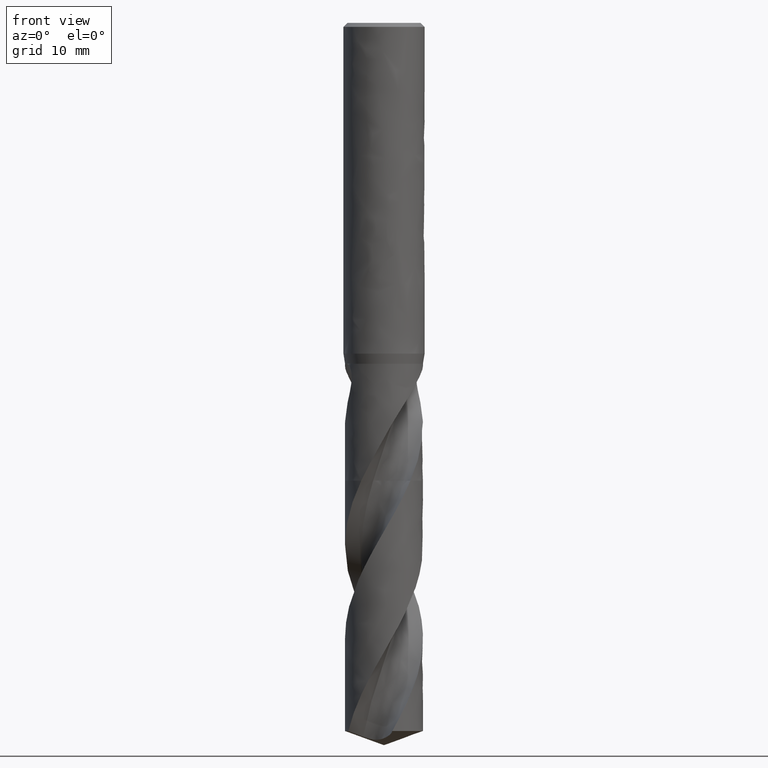
[diagram: clean part render]
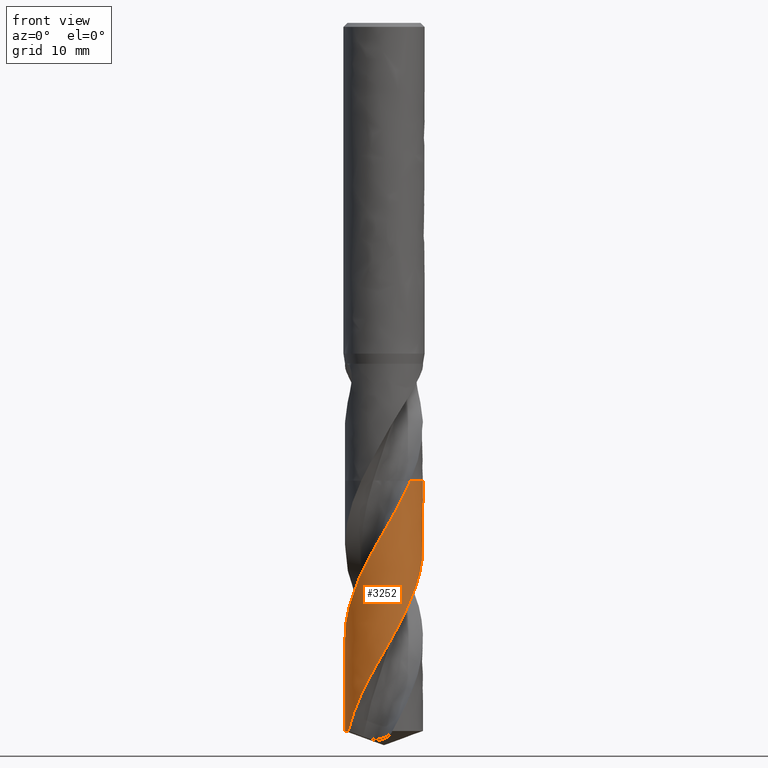
[diagram: same view with one face highlighted and labeled with its STEP entity id]
A machine part, front view. The second image highlights one B-rep face of the part: STEP entity #3252.
In plain terms, the highlighted face is a freeform B-spline surface patch.
Its self-contained STEP definition (entity closure, byte-faithful):
#1973 = VERTEX_POINT('', #1974);
#1974 = CARTESIAN_POINT('', (3.26266816956388, -3.52065283936299, -56.4));
#2041 = EDGE_CURVE('', #2042, #1973, #2044, .T.);
#2042 = VERTEX_POINT('', #2043);
#2043 = CARTESIAN_POINT('', (2.80088440226429, 3.89808242154431, -56.4));
#2044 = CIRCLE('', #2045, 4.8);
#2045 = AXIS2_PLACEMENT_3D('', #2046, #2047, #2048);
#2046 = CARTESIAN_POINT('', (2.11466129355322E-31, 3.45350397359554E-15, -56.4));
#2047 = DIRECTION('', (3.74939945665464E-33, 6.12323399573677E-17, -1.));
#2048 = DIRECTION('', (-1., 6.12323399573677E-17, 0.));
#3013 = EDGE_CURVE('', #2042, #3014, #3016, .T.);
#3014 = VERTEX_POINT('', #3015);
#3015 = CARTESIAN_POINT('', (-4.39018999158839, -1.94067819015855, -87.2529428755222));
#3016 = B_SPLINE_CURVE_WITH_KNOTS('', 3, (#3017, #3018, #3019, #3020, #3021, #3022, #3023, #3024, #3025, #3026, #3027, #3028, #3029, #3030, #3031, #3032, #3033, #3034, #3035, #3036, #3037, #3038, #3039, #3040, #3041, #3042, #3043, #3044, #3045, #3046, #3047, #3048, #3049, #3050, #3051, #3052, #3053, #3054, #3055, #3056, #3057, #3058, #3059, #3060, #3061, #3062, #3063, #3064, #3065, #3066, #3067, #3068, #3069, #3070, #3071, #3072, #3073, #3074, #3075, #3076, #3077, #3078, #3079, #3080, #3081, #3082, #3083, #3084, #3085, #3086, #3087, #3088, #3089, #3090, #3091, #3092, #3093, #3094, #3095, #3096, #3097, #3098, #3099, #3100, #3101, #3102, #3103, #3104, #3105, #3106, #3107, #3108, #3109, #3110, #3111, #3112, #3113, #3114, #3115, #3116, #3117, #3118, #3119, #3120, #3121, #3122, #3123, #3124, #3125, #3126, #3127, #3128, #3129, #3130, #3131, #3132, #3133, #3134, #3135, #3136, #3137, #3138, #3139, #3140), .UNSPECIFIED., .F., .U., (4, 3, 3, 3, 3, 3, 3, 3, 3, 3, 3, 3, 3, 3, 3, 3, 3, 3, 3, 3, 3, 3, 3, 3, 3, 3, 3, 3, 3, 3, 3, 3, 3, 3, 3, 3, 3, 3, 3, 3, 3, 4), (13.7042233330329, 14.4457744735226, 15.4434128109755, 16.4407181553541, 17.4376977974565, 18.4343501793914, 19.4306743820636, 20.4266669246063, 21.4223226939535, 22.4176345229838, 22.7129916703019, 22.8443146461555, 22.9757247313247, 23.9757146775921, 24.9753149431819, 25.9745422049943, 26.973410229939, 27.9719302272839, 28.9701111209858, 29.9679597573009, 30.9654810583245, 31.9626781291069, 32.9595523234669, 33.9561032715885, 34.9523288706809, 35.9482252383163, 36.9437866293155, 37.939005306013, 38.0265641434238, 38.0849523872374, 39.084952972639, 40.0845670583772, 41.0838113176879, 42.0826995367504, 43.0812429680984, 44.0794506032565, 45.0773293769486, 46.0748843280766, 47.0721186942076, 48.069034011631, 49.0656300783286, 49.2357106982337), .UNSPECIFIED.);
#3017 = CARTESIAN_POINT('', (2.80088440226429, 3.89808242154431, -56.4));
#3018 = CARTESIAN_POINT('', (2.90085592286399, 3.82625000692661, -56.6143492185597));
#3019 = CARTESIAN_POINT('', (2.99808197490603, 3.7505535459088, -56.8287904814698));
#3020 = CARTESIAN_POINT('', (3.09221547968282, 3.67126727809485, -57.0431554954822));
#3021 = CARTESIAN_POINT('', (3.21885703961907, 3.56460029845471, -57.3315493020727));
#3022 = CARTESIAN_POINT('', (3.34000695087356, 3.45134184532569, -57.620043623779));
#3023 = CARTESIAN_POINT('', (3.45493287095499, 3.33218229651301, -57.9084529713193));
#3024 = CARTESIAN_POINT('', (3.56982043090729, 3.21306252093579, -58.1967660531973));
#3025 = CARTESIAN_POINT('', (3.67856353342554, 3.08796807092813, -58.485185783193));
#3026 = CARTESIAN_POINT('', (3.78051526048728, 2.9576518329957, -58.773520014646));
#3027 = CARTESIAN_POINT('', (3.88243369191921, 2.82737815404037, -59.0617600812417));
#3028 = CARTESIAN_POINT('', (3.9776329620267, 2.69179929826908, -59.350104686837));
#3029 = CARTESIAN_POINT('', (4.06554578500115, 2.55173224889671, -59.638364103547));
#3030 = CARTESIAN_POINT('', (4.15342975045035, 2.41171117675809, -59.9265288986408));
#3031 = CARTESIAN_POINT('', (4.23409016165158, 2.26711237929592, -60.2147985960631));
#3032 = CARTESIAN_POINT('', (4.30704842096441, 2.11880482807361, -60.5029832656864));
#3033 = CARTESIAN_POINT('', (4.37998265646695, 1.97054611179483, -60.7910730414087));
#3034 = CARTESIAN_POINT('', (4.44526807066864, 1.81848301698919, -61.0792673790929));
#3035 = CARTESIAN_POINT('', (4.50251870694292, 1.66352796598949, -61.3673768467481));
#3036 = CARTESIAN_POINT('', (4.55975028541113, 1.5086244970071, -61.6553904074455));
#3037 = CARTESIAN_POINT('', (4.6089902370289, 1.35072875661112, -61.9435083950022));
#3038 = CARTESIAN_POINT('', (4.64994920750852, 1.19078644919695, -62.2315416751255));
#3039 = CARTESIAN_POINT('', (4.69089432860395, 1.0308982227921, -62.5194775630656));
#3040 = CARTESIAN_POINT('', (4.72359108308026, 0.868859419327918, -62.807517695009));
#3041 = CARTESIAN_POINT('', (4.74784938426638, 0.70563887670822, -63.095473269254));
#3042 = CARTESIAN_POINT('', (4.77209930564086, 0.542474717154722, -63.3833293718396));
#3043 = CARTESIAN_POINT('', (4.787932584024, 0.378022284418703, -63.6712895549871));
#3044 = CARTESIAN_POINT('', (4.79526003938155, 0.213263111466172, -63.959165328145));
#3045 = CARTESIAN_POINT('', (4.79743444970039, 0.164371098030372, -64.0445919900835));
#3046 = CARTESIAN_POINT('', (4.79886102057986, 0.115445961183362, -64.1300220074568));
#3047 = CARTESIAN_POINT('', (4.79953914250099, 0.0665133039388361, -64.2154503798727));
#3048 = CARTESIAN_POINT('', (4.79984065201069, 0.0447566536457195, -64.2534339133334));
#3049 = CARTESIAN_POINT('', (4.79999421918566, 0.0229981154505236, -64.2914178278767));
#3050 = CARTESIAN_POINT('', (4.79999983984467, 0.00123995609741623, -64.3294016931893));
#3051 = CARTESIAN_POINT('', (4.80000546423199, -0.0205326359043486, -64.3674107540055));
#3052 = CARTESIAN_POINT('', (4.79986294582685, -0.0423050973973098, -64.4054202001476));
#3053 = CARTESIAN_POINT('', (4.79957231159032, -0.0640751575534, -64.4434296004425));
#3054 = CARTESIAN_POINT('', (4.79736067529014, -0.229738555896782, -64.7326693350464));
#3055 = CARTESIAN_POINT('', (4.78656002617253, -0.395323770740745, -65.0220150307541));
#3056 = CARTESIAN_POINT('', (4.76724058450674, -0.55983677034633, -65.3112746184847));
#3057 = CARTESIAN_POINT('', (4.74792867132976, -0.724285661770234, -65.6004214862098));
#3058 = CARTESIAN_POINT('', (4.72009207714893, -0.887770071322724, -65.8896741276427));
#3059 = CARTESIAN_POINT('', (4.68390304484208, -1.04931037663746, -66.1788408316317));
#3060 = CARTESIAN_POINT('', (4.64772751657902, -1.21079040271243, -66.4678996322151));
#3061 = CARTESIAN_POINT('', (4.60318233390967, -1.37043256287439, -66.7570640200337));
#3062 = CARTESIAN_POINT('', (4.55053950028468, -1.52728198324676, -67.0461426412733));
#3063 = CARTESIAN_POINT('', (4.4979155925311, -1.68407501395017, -67.3351173345053));
#3064 = CARTESIAN_POINT('', (4.43716578466049, -1.83817890374186, -67.6241974278392));
#3065 = CARTESIAN_POINT('', (4.36865854486151, -1.98867355752746, -67.9131919273545));
#3066 = CARTESIAN_POINT('', (4.30017517449235, -2.1391157756641, -68.2020857348268));
#3067 = CARTESIAN_POINT('', (4.22389548827828, -2.28604862165036, -68.4910847527253));
#3068 = CARTESIAN_POINT('', (4.14028012863032, -2.42859639637157, -68.7799983532426));
#3069 = CARTESIAN_POINT('', (4.05669316528204, -2.57109576097595, -69.0688138368921));
#3070 = CARTESIAN_POINT('', (3.96572150502591, -2.70930514477167, -69.3577343369571));
#3071 = CARTESIAN_POINT('', (3.86791272876497, -2.84240235059323, -69.6465696014921));
#3072 = CARTESIAN_POINT('', (3.77013650941693, -2.9754552532929, -69.9353087234834));
#3073 = CARTESIAN_POINT('', (3.66546459633658, -3.10348532137641, -70.2241526616979));
#3074 = CARTESIAN_POINT('', (3.55452538737934, -3.22573236187935, -70.5129115534386));
#3075 = CARTESIAN_POINT('', (3.44362257103414, -3.34793930033757, -70.8015757204159));
#3076 = CARTESIAN_POINT('', (3.32638499452478, -3.4644459052665, -71.0903444953528));
#3077 = CARTESIAN_POINT('', (3.20351493377875, -3.57456180098436, -71.3790284219227));
#3078 = CARTESIAN_POINT('', (3.0806848102144, -3.68464190508213, -71.6676185158506));
#3079 = CARTESIAN_POINT('', (2.95214659332592, -3.78840651991982, -71.9563129994403));
#3080 = CARTESIAN_POINT('', (2.81866875761444, -3.8852421333616, -72.2449228437448));
#3081 = CARTESIAN_POINT('', (2.68523413988597, -3.98204639298443, -72.5334392408093));
#3082 = CARTESIAN_POINT('', (2.54677695647559, -4.07198865465561, -72.8220597971524));
#3083 = CARTESIAN_POINT('', (2.4041235443766, -4.15453848018935, -73.1105959362848));
#3084 = CARTESIAN_POINT('', (2.26151638904616, -4.23706153813221, -73.3990385147431));
#3085 = CARTESIAN_POINT('', (2.11462358357092, -4.31225029081578, -73.6875850078521));
#3086 = CARTESIAN_POINT('', (1.96432042513075, -4.37966268877115, -73.9760473209472));
#3087 = CARTESIAN_POINT('', (1.81406633692303, -4.44705307825994, -74.2644154582917));
#3088 = CARTESIAN_POINT('', (1.6603069097081, -4.50671580454319, -74.552887249129));
#3089 = CARTESIAN_POINT('', (1.50395702795683, -4.55830157603238, -74.8412751145297));
#3090 = CARTESIAN_POINT('', (1.34765881652946, -4.60987029951686, -75.1295676738498));
#3091 = CARTESIAN_POINT('', (1.18867055666925, -4.65340084270713, -75.4179636119428));
#3092 = CARTESIAN_POINT('', (1.02793694898612, -4.68864006177797, -75.7062758882979));
#3093 = CARTESIAN_POINT('', (0.86725740516442, -4.72386742789358, -75.9944911888233));
#3094 = CARTESIAN_POINT('', (0.704729346425903, -4.75083193507573, -76.2828095952229));
#3095 = CARTESIAN_POINT('', (0.541317184235682, -4.76937896439903, -76.5710445957602));
#3096 = CARTESIAN_POINT('', (0.377961275417257, -4.78791960905107, -76.85918037363));
#3097 = CARTESIAN_POINT('', (0.213615638091313, -4.7980606420189, -77.1474189981726));
#3098 = CARTESIAN_POINT('', (0.0492540837405884, -4.79974728868481, -77.4355744590146));
#3099 = CARTESIAN_POINT('', (0.0347936370559071, -4.79989567900811, -77.4609262311785));
#3100 = CARTESIAN_POINT('', (0.0203326122277865, -4.79997871913406, -77.4862781403111));
#3101 = CARTESIAN_POINT('', (0.00587166665123583, -4.79999640869977, -77.5116300560173));
#3102 = CARTESIAN_POINT('', (-0.0037715543081533, -4.80000820491254, -77.5285358747691));
#3103 = CARTESIAN_POINT('', (-0.0134147665954179, -4.79999094100663, -77.5454417437195));
#3104 = CARTESIAN_POINT('', (-0.0230577724951845, -4.79994461833962, -77.5623476257942));
#3105 = CARTESIAN_POINT('', (-0.188211079307658, -4.79915126181614, -77.8518903636322));
#3106 = CARTESIAN_POINT('', (-0.353359263703481, -4.78982274883332, -78.1415377681302));
#3107 = CARTESIAN_POINT('', (-0.517517117371954, -4.77202012079025, -78.4311003809001));
#3108 = CARTESIAN_POINT('', (-0.681611524122374, -4.7542243734529, -78.7205510778831));
#3109 = CARTESIAN_POINT('', (-0.844822508070311, -4.72794956523702, -79.0101061725794));
#3110 = CARTESIAN_POINT('', (-1.0061778955051, -4.69335765125533, -79.2995767364833));
#3111 = CARTESIAN_POINT('', (-1.16747358641567, -4.65877853521651, -79.5889402051932));
#3112 = CARTESIAN_POINT('', (-1.32701952882224, -4.61586608244995, -79.8784077924046));
#3113 = CARTESIAN_POINT('', (-1.48386675543046, -4.56488109945151, -80.1677911215895));
#3114 = CARTESIAN_POINT('', (-1.64065809587775, -4.51391428288819, -80.4570713407376));
#3115 = CARTESIAN_POINT('', (-1.79485438995847, -4.45484762646829, -80.7464553922542));
#3116 = CARTESIAN_POINT('', (-1.94553979330451, -4.38803770638643, -81.0357554610709));
#3117 = CARTESIAN_POINT('', (-2.09617318434842, -4.32125084718287, -81.3249556717576));
#3118 = CARTESIAN_POINT('', (-2.24339604785465, -4.2466826585361, -81.6142594361297));
#3119 = CARTESIAN_POINT('', (-2.3863352433888, -4.16478139956476, -81.9034794822535));
#3120 = CARTESIAN_POINT('', (-2.52922637047072, -4.08290768284129, -82.192602267721));
#3121 = CARTESIAN_POINT('', (-2.66792976655025, -3.99365252353475, -82.4818283447806));
#3122 = CARTESIAN_POINT('', (-2.80162411468199, -3.89755081044909, -82.7709709510928));
#3123 = CARTESIAN_POINT('', (-2.93527441694814, -3.80148075826156, -83.0600182988053));
#3124 = CARTESIAN_POINT('', (-3.06400611406419, -3.69850604152304, -83.3491686909734));
#3125 = CARTESIAN_POINT('', (-3.18705823925377, -3.58924222916267, -83.6382358479414));
#3126 = CARTESIAN_POINT('', (-3.31007043268436, -3.48001387410314, -83.927209199459));
#3127 = CARTESIAN_POINT('', (-3.42748701087038, -3.36442925088302, -84.2162853662091));
#3128 = CARTESIAN_POINT('', (-3.53861522771593, -3.24317780428038, -84.5052785102219));
#3129 = CARTESIAN_POINT('', (-3.64970773120149, -3.12196532434781, -84.7941787802871));
#3130 = CARTESIAN_POINT('', (-3.75458842677393, -2.99501057130524, -85.0831816495091));
#3131 = CARTESIAN_POINT('', (-3.85263987368818, -2.86306933266868, -85.3721017058758));
#3132 = CARTESIAN_POINT('', (-3.95065995065722, -2.73117030645791, -85.66092932703));
#3133 = CARTESIAN_POINT('', (-4.04191914824991, -2.59420189332518, -85.9498593275667));
#3134 = CARTESIAN_POINT('', (-4.12588156942487, -2.45297804211129, -86.2387067250359));
#3135 = CARTESIAN_POINT('', (-4.20981710259496, -2.31179941622018, -86.5274616224303));
#3136 = CARTESIAN_POINT('', (-4.28651521097853, -2.16627619532841, -86.8163188665855));
#3137 = CARTESIAN_POINT('', (-4.35552725647914, -2.01727100759102, -87.1050934508368));
#3138 = CARTESIAN_POINT('', (-4.36730495847084, -1.99184155272327, -87.1543761662152));
#3139 = CARTESIAN_POINT('', (-4.37885985191626, -1.96630916083887, -87.2036596253134));
#3140 = CARTESIAN_POINT('', (-4.39018999158839, -1.94067819015855, -87.2529428755222));
#3252 = ADVANCED_FACE('', (#3253), #3359, .T.);
#3253 = FACE_OUTER_BOUND('', #3254, .T.);
#3254 = EDGE_LOOP('', (#3255, #3256, #3271, #3343, #3351, #3358));
#3255 = ORIENTED_EDGE('', *, *, #2041, .T.);
#3256 = ORIENTED_EDGE('', *, *, #3257, .T.);
#3257 = EDGE_CURVE('', #1973, #3258, #3260, .T.);
#3258 = VERTEX_POINT('', #3259);
#3259 = CARTESIAN_POINT('', (2.13303199795351, -4.30002029015055, -58.7905693454649));
#3260 = B_SPLINE_CURVE_WITH_KNOTS('', 3, (#3261, #3262, #3263, #3264, #3265, #3266, #3267, #3268, #3269, #3270), .UNSPECIFIED., .F., .U., (4, 3, 3, 4), (5.80955891425793, 6.66468173101966, 7.66164393248799, 8.56811471581159), .UNSPECIFIED.);
#3261 = CARTESIAN_POINT('', (3.26266816956388, -3.52065283936299, -56.4));
#3262 = CARTESIAN_POINT('', (3.15826330843376, -3.61740717235158, -56.6469545725049));
#3263 = CARTESIAN_POINT('', (3.04953759261363, -3.70952422396664, -56.8940206944136));
#3264 = CARTESIAN_POINT('', (2.93698382442296, -3.79659400187561, -57.1410001265566));
#3265 = CARTESIAN_POINT('', (2.80576074123607, -3.89810606045243, -57.4289460842135));
#3266 = CARTESIAN_POINT('', (2.66923479668082, -3.99283061063628, -57.7169963782741));
#3267 = CARTESIAN_POINT('', (2.5282441648939, -4.08019379964725, -58.0049657951966));
#3268 = CARTESIAN_POINT('', (2.40005085099599, -4.15962728093651, -58.2667970487251));
#3269 = CARTESIAN_POINT('', (2.26809353645955, -4.23302279621172, -58.5287134201466));
#3270 = CARTESIAN_POINT('', (2.13303199795342, -4.30002029015059, -58.7905693454651));
#3271 = ORIENTED_EDGE('', *, *, #3272, .T.);
#3272 = EDGE_CURVE('', #3258, #3273, #3275, .T.);
#3273 = VERTEX_POINT('', #3274);
#3274 = CARTESIAN_POINT('', (-4.8, 4.9357669771723E-15, -75.8071918957984));
#3275 = B_SPLINE_CURVE_WITH_KNOTS('', 3, (#3276, #3277, #3278, #3279, #3280, #3281, #3282, #3283, #3284, #3285, #3286, #3287, #3288, #3289, #3290, #3291, #3292, #3293, #3294, #3295, #3296, #3297, #3298, #3299, #3300, #3301, #3302, #3303, #3304, #3305, #3306, #3307, #3308, #3309, #3310, #3311, #3312, #3313, #3314, #3315, #3316, #3317, #3318, #3319, #3320, #3321, #3322, #3323, #3324, #3325, #3326, #3327, #3328, #3329, #3330, #3331, #3332, #3333, #3334, #3335, #3336, #3337, #3338, #3339, #3340, #3341, #3342), .UNSPECIFIED., .F., .U., (4, 3, 3, 3, 3, 3, 3, 3, 3, 3, 3, 3, 3, 3, 3, 3, 3, 3, 3, 3, 3, 3, 4), (0., 0.996322261654458, 1.99230966191648, 2.98795800145652, 3.98326028775517, 4.42612368500841, 4.48451456885899, 5.48455026157951, 6.48419056989272, 7.48345302158559, 8.48235213484845, 9.48089979327027, 10.479105533501, 11.4769767663819, 12.474518941565, 13.4717356642738, 14.468628769664, 15.4651983582857, 16.4614427942531, 17.4573586660315, 18.4529407095252, 19.4481816898768, 19.6099285647825), .UNSPECIFIED.);
#3276 = CARTESIAN_POINT('', (2.13303199795351, -4.30002029015055, -58.7905693454649));
#3277 = CARTESIAN_POINT('', (1.9845828477078, -4.37365873047801, -59.0783810350865));
#3278 = CARTESIAN_POINT('', (1.83229220947302, -4.43961090334991, -59.3663054252348));
#3279 = CARTESIAN_POINT('', (1.67708263132746, -4.4974875038959, -59.6541519550844));
#3280 = CARTESIAN_POINT('', (1.52192521872859, -4.55534465226282, -59.9419017404434));
#3281 = CARTESIAN_POINT('', (1.36374679423672, -4.60517052698761, -60.2297645683474));
#3282 = CARTESIAN_POINT('', (1.20350218637859, -4.64667434703382, -60.5175497483856));
#3283 = CARTESIAN_POINT('', (1.04331213006641, -4.68816403807078, -60.8052369586594));
#3284 = CARTESIAN_POINT('', (0.880949686967365, -4.72136523347074, -61.0930367302343));
#3285 = CARTESIAN_POINT('', (0.717392896295642, -4.74608759214842, -61.3807590977439));
#3286 = CARTESIAN_POINT('', (0.553892952359172, -4.77080135818147, -61.668381462819));
#3287 = CARTESIAN_POINT('', (0.38908986111155, -4.78705878993675, -61.9561161590481));
#3288 = CARTESIAN_POINT('', (0.223973873791286, -4.79477170508258, -62.2437736784376));
#3289 = CARTESIAN_POINT('', (0.15050491055057, -4.79820359492272, -62.3717679451403));
#3290 = CARTESIAN_POINT('', (0.0769581335695072, -4.79994637209792, -62.4997739886632));
#3291 = CARTESIAN_POINT('', (0.00342088728001815, -4.79999878099257, -62.6277750409939));
#3292 = CARTESIAN_POINT('', (-0.00627488986799709, -4.80000569102781, -62.6446517904064));
#3293 = CARTESIAN_POINT('', (-0.0159705938835736, -4.79998322332262, -62.6615286194292));
#3294 = CARTESIAN_POINT('', (-0.0256660237298615, -4.79993138026221, -62.6784054901515));
#3295 = CARTESIAN_POINT('', (-0.191715503771443, -4.79904348634093, -62.9674484364253));
#3296 = CARTESIAN_POINT('', (-0.35774189645426, -4.78952747878464, -63.2566061503561));
#3297 = CARTESIAN_POINT('', (-0.52274477483175, -4.77145029319033, -63.545684528061));
#3298 = CARTESIAN_POINT('', (-0.687682415972461, -4.75338025477823, -63.8346486127622));
#3299 = CARTESIAN_POINT('', (-0.851704581460556, -4.72674410194952, -64.1237272207776));
#3300 = CARTESIAN_POINT('', (-1.01382559386325, -4.69171159228994, -64.4127266924121));
#3301 = CARTESIAN_POINT('', (-1.17588532572601, -4.65669232465911, -64.7016169243903));
#3302 = CARTESIAN_POINT('', (-1.33615039815174, -4.61326038676791, -64.9906214311898));
#3303 = CARTESIAN_POINT('', (-1.49366028042777, -4.5616859785254, -65.2795470086818));
#3304 = CARTESIAN_POINT('', (-1.65111289106987, -4.5101303230785, -65.5683675309247));
#3305 = CARTESIAN_POINT('', (-1.80591412911981, -4.45040482112848, -65.8573020763558));
#3306 = CARTESIAN_POINT('', (-1.9571386856537, -4.38287669973941, -66.1461579064823));
#3307 = CARTESIAN_POINT('', (-2.10831003501004, -4.31537233759174, -66.4349121049439));
#3308 = CARTESIAN_POINT('', (-2.25600476423383, -4.24002732862798, -66.7237800683237));
#3309 = CARTESIAN_POINT('', (-2.39934242326944, -4.15730152092674, -67.0125695403388));
#3310 = CARTESIAN_POINT('', (-2.54263100126954, -4.07460403982391, -67.3012601263639));
#3311 = CARTESIAN_POINT('', (-2.68165779536127, -3.98447758294127, -67.5900642101997));
#3312 = CARTESIAN_POINT('', (-2.81559632039106, -3.88746927455387, -67.8787900386983));
#3313 = CARTESIAN_POINT('', (-2.94948996146632, -3.79049347448699, -68.1674191126824));
#3314 = CARTESIAN_POINT('', (-3.07838489181718, -3.68657808023435, -68.4561614059314));
#3315 = CARTESIAN_POINT('', (-3.20151707494216, -3.57635127173685, -68.7448256943968));
#3316 = CARTESIAN_POINT('', (-3.3246086540379, -3.46616081159638, -69.033394793019));
#3317 = CARTESIAN_POINT('', (-3.44202043475785, -3.34959228722431, -69.322076818362));
#3318 = CARTESIAN_POINT('', (-3.55305860818197, -3.22734790917, -69.6106811064566));
#3319 = CARTESIAN_POINT('', (-3.66406055491897, -3.10514341387581, -69.8991912361468));
#3320 = CARTESIAN_POINT('', (-3.76876442742441, -2.97718823185962, -70.187813983344));
#3321 = CARTESIAN_POINT('', (-3.86655364385606, -2.84425085377212, -70.4763592803777));
#3322 = CARTESIAN_POINT('', (-3.96431112567748, -2.71135661659557, -70.7648109385331));
#3323 = CARTESIAN_POINT('', (-4.055221340678, -2.57339794889953, -71.053374885541));
#3324 = CARTESIAN_POINT('', (-4.13875108856865, -2.43120123125829, -71.3418616917017));
#3325 = CARTESIAN_POINT('', (-4.22225372896505, -2.28905066001162, -71.6302548766719));
#3326 = CARTESIAN_POINT('', (-4.2984344999507, -2.14257323351145, -71.9187599994965));
#3327 = CARTESIAN_POINT('', (-4.36684883615139, -1.99264428391102, -72.2071883158424));
#3328 = CARTESIAN_POINT('', (-4.43524085067655, -1.84276425191402, -72.4955225261331));
#3329 = CARTESIAN_POINT('', (-4.4959156701483, -1.68933819179012, -72.7839682978807));
#3330 = CARTESIAN_POINT('', (-4.54852167023329, -1.53328099688814, -73.0723376255503));
#3331 = CARTESIAN_POINT('', (-4.60111032071297, -1.37727527008358, -73.3606118482127));
#3332 = CARTESIAN_POINT('', (-4.64566954707664, -1.21853911429554, -73.6489972312818));
#3333 = CARTESIAN_POINT('', (-4.681943993691, -1.05801722100403, -73.9373065559726));
#3334 = CARTESIAN_POINT('', (-4.71820628120976, -0.897549134213469, -74.2255192401637));
#3335 = CARTESIAN_POINT('', (-4.74621292681044, -0.735192216079236, -74.5138426788168));
#3336 = CARTESIAN_POINT('', (-4.76580717064036, -0.571910842941239, -74.8020904376943));
#3337 = CARTESIAN_POINT('', (-4.78539470194025, -0.408685406185912, -75.0902394496257));
#3338 = CARTESIAN_POINT('', (-4.796588382953, -0.244429744519439, -75.3784988333066));
#3339 = CARTESIAN_POINT('', (-4.79933132587158, -0.080117566798035, -75.6666828928589));
#3340 = CARTESIAN_POINT('', (-4.79977710981124, -0.0534135003658004, -75.7135186562072));
#3341 = CARTESIAN_POINT('', (-4.8, -0.0267062520654899, -75.7603552571875));
#3342 = CARTESIAN_POINT('', (-4.8, 4.20718311726204E-15, -75.8071918957984));
#3343 = ORIENTED_EDGE('', *, *, #3344, .T.);
#3344 = EDGE_CURVE('', #3273, #3345, #3347, .T.);
#3345 = VERTEX_POINT('', #3346);
#3346 = CARTESIAN_POINT('', (-4.8, 5.63661709223012E-15, -87.2529428755222));
#3347 = LINE('', #3348, #3349);
#3348 = CARTESIAN_POINT('', (-4.8, 4.9357669771723E-15, -75.8071918957984));
#3349 = VECTOR('', #3350, 11.4457509797239);
#3350 = DIRECTION('', (0., 7.00850115057826E-16, -11.4457509797239));
#3351 = ORIENTED_EDGE('', *, *, #3352, .F.);
#3352 = EDGE_CURVE('', #3014, #3345, #3353, .T.);
#3353 = CIRCLE('', #3354, 4.8);
#3354 = AXIS2_PLACEMENT_3D('', #3355, #3356, #3357);
#3355 = CARTESIAN_POINT('', (3.27146136609002E-31, 5.34270186043476E-15, -87.2529428755222));
#3356 = DIRECTION('', (3.74939945665464E-33, 6.12323399573677E-17, -1.));
#3357 = DIRECTION('', (-1., 6.12323399573677E-17, 0.));
#3358 = ORIENTED_EDGE('', *, *, #3013, .F.);
#3359 = (
   BOUNDED_SURFACE ()
   B_SPLINE_SURFACE (2, 1, ((#3360, #3361), (#3362, #3363), (#3364, #3365), (#3366, #3367), (#3368, #3369), (#3370, #3371), (#3372, #3373)), .UNSPECIFIED., .F., .F., .U.)
   B_SPLINE_SURFACE_WITH_KNOTS ((3, 2, 2, 3), (2, 2), (10.56932695289, 15.079644737231, 22.6194671058465, 30.159289474462), (0.318211349030056, 1.), .UNSPECIFIED.)
   GEOMETRIC_REPRESENTATION_ITEM ()
   RATIONAL_B_SPLINE_SURFACE (((0.859202209427883, 0.859202209427883), (0.824791430203178, 0.824791430203178), (1., 1.), (0.707106781186548, 0.707106781186548), (1., 1.), (0.707106781186548, 0.707106781186548), (1., 1.)))
   REPRESENTATION_ITEM ('')
   SURFACE ()
);
#3360 = CARTESIAN_POINT('', (2.80088440226428, 3.8980824215443, -56.4));
#3361 = CARTESIAN_POINT('', (2.80088440226428, 3.89808242154431, -87.2529428755222));
#3362 = CARTESIAN_POINT('', (4.8, 2.46166033229486, -56.4));
#3363 = CARTESIAN_POINT('', (4.8, 2.46166033229486, -87.2529428755222));
#3364 = CARTESIAN_POINT('', (4.8, 3.7474192053909E-15, -56.4));
#3365 = CARTESIAN_POINT('', (4.8, 5.63661709223012E-15, -87.2529428755222));
#3366 = CARTESIAN_POINT('', (4.8, -4.8, -56.4));
#3367 = CARTESIAN_POINT('', (4.8, -4.79999999999999, -87.2529428755222));
#3368 = CARTESIAN_POINT('', (5.8783046359073E-16, -4.8, -56.4));
#3369 = CARTESIAN_POINT('', (5.8783046359073E-16, -4.79999999999999, -87.2529428755222));
#3370 = CARTESIAN_POINT('', (-4.8, -4.8, -56.4));
#3371 = CARTESIAN_POINT('', (-4.8, -4.8, -87.2529428755222));
#3372 = CARTESIAN_POINT('', (-4.8, 3.7474192053909E-15, -56.4));
#3373 = CARTESIAN_POINT('', (-4.8, 5.63661709223012E-15, -87.2529428755222));